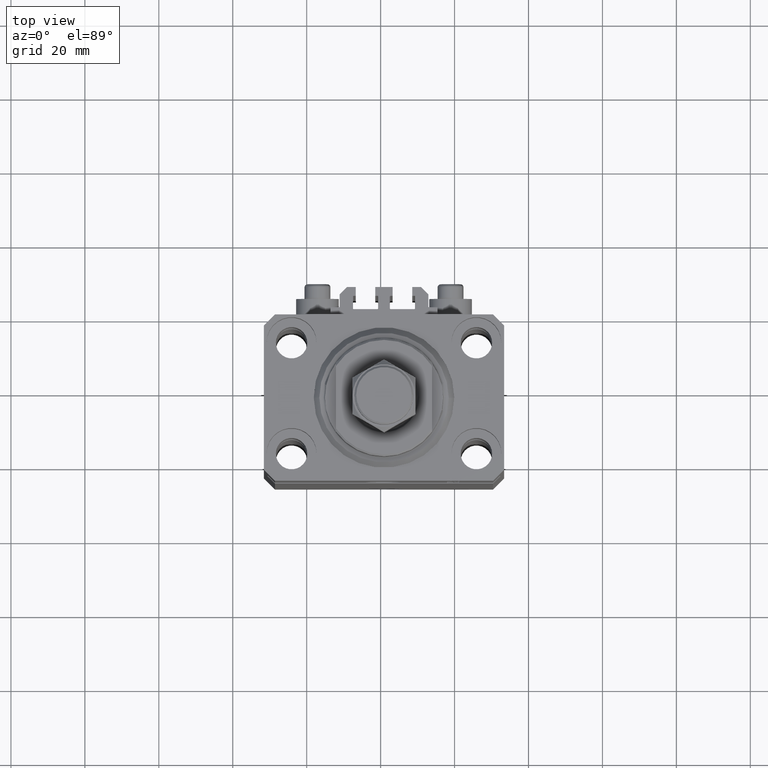
[diagram: clean part render]
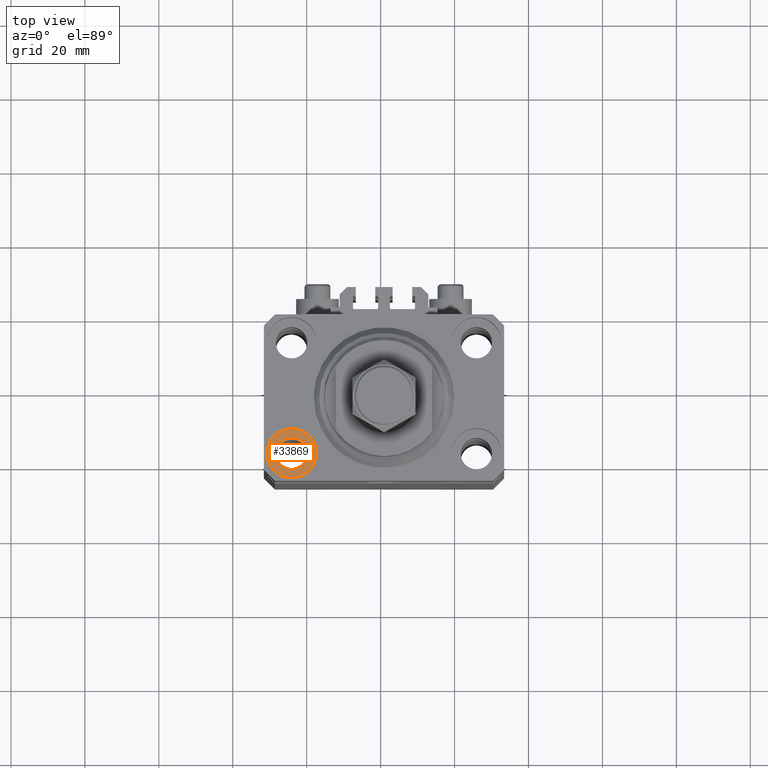
[diagram: same view with one face highlighted and labeled with its STEP entity id]
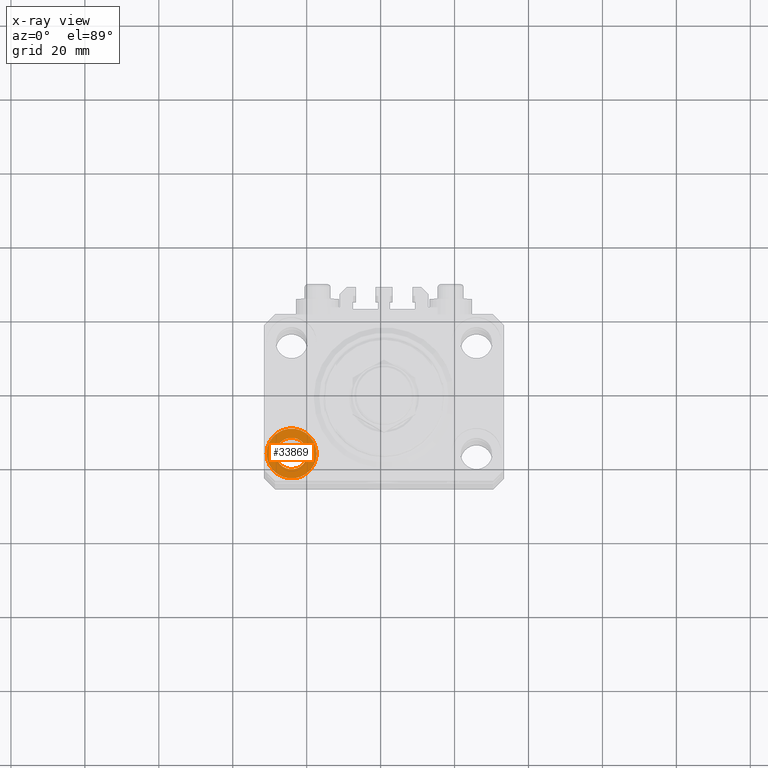
[diagram: x-ray of the same camera — body ghosted, the highlighted face saturated]
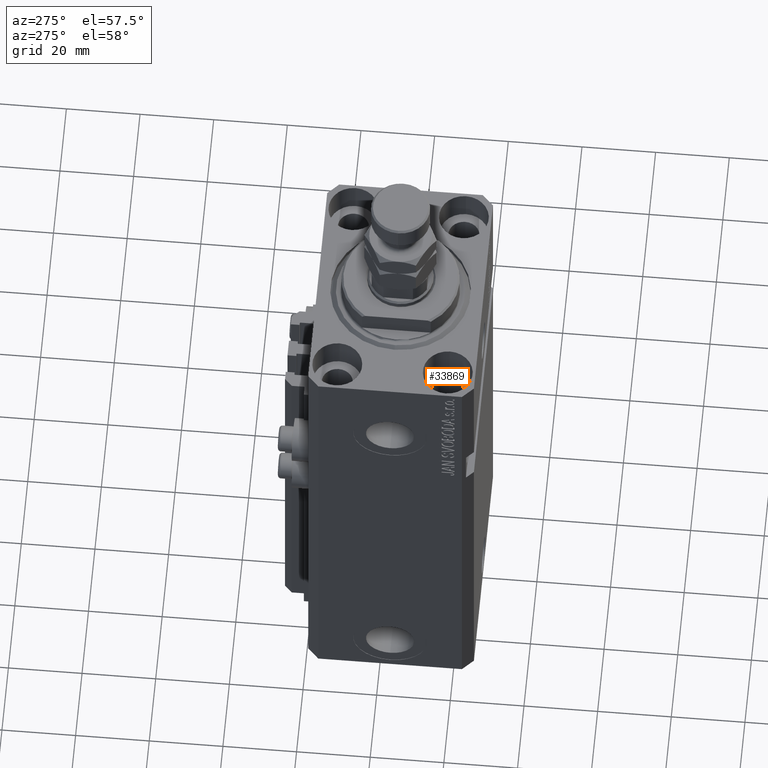
[diagram: same view with one face highlighted and labeled with its STEP entity id]
A machine part, top view. The second image highlights one B-rep face of the part: STEP entity #33869.
The next image is the same camera in x-ray: the body ghosted, the highlighted face saturated — about 0% of this face is hidden behind the body in this view.
A second angle (auxiliary view) of the same face is appended — the face is thin or edge-on in the first view.
In plain terms, the highlighted planar face has unit normal (0, 0, 1).
Its self-contained STEP definition (entity closure, byte-faithful):
#1179 = CIRCLE ( 'NONE', #15406, 4.250000000041540105 ) ;
#2542 = DIRECTION ( 'NONE',  ( 1.000000000000000000, 0.000000000000000000, 0.000000000000000000 ) ) ;
#2555 = CARTESIAN_POINT ( 'NONE',  ( -29.25000000004154543, -15.00000000000000000, -9.000000000000000000 ) ) ;
#4132 = CARTESIAN_POINT ( 'NONE',  ( -25.00000000000000355, -15.00000000000000000, -9.000000000000000000 ) ) ;
#4264 = FACE_BOUND ( 'NONE', #19846, .T. ) ;
#5096 = ORIENTED_EDGE ( 'NONE', *, *, #16272, .F. ) ;
#7608 = DIRECTION ( 'NONE',  ( 1.000000000000000000, 0.000000000000000000, 0.000000000000000000 ) ) ;
#8584 = DIRECTION ( 'NONE',  ( 0.000000000000000000, 0.000000000000000000, 1.000000000000000000 ) ) ;
#9566 = EDGE_LOOP ( 'NONE', ( #18481, #25857 ) ) ;
#10112 = CARTESIAN_POINT ( 'NONE',  ( -25.00000000000000355, -15.00000000000000000, -9.000000000000000000 ) ) ;
#11854 = VERTEX_POINT ( 'NONE', #19792 ) ;
#12189 = FACE_OUTER_BOUND ( 'NONE', #9566, .T. ) ;
#12248 = CARTESIAN_POINT ( 'NONE',  ( -20.74999999995846522, -15.00000000000000000, -9.000000000000000000 ) ) ;
#15148 = EDGE_CURVE ( 'NONE', #11854, #37922, #27976, .T. ) ;
#15406 = AXIS2_PLACEMENT_3D ( 'NONE', #4132, #8584, #7608 ) ;
#15657 = DIRECTION ( 'NONE',  ( 0.000000000000000000, 0.000000000000000000, 1.000000000000000000 ) ) ;
#15793 = EDGE_CURVE ( 'NONE', #33534, #31093, #1179, .T. ) ;
#16272 = EDGE_CURVE ( 'NONE', #31093, #33534, #44502, .T. ) ;
#18481 = ORIENTED_EDGE ( 'NONE', *, *, #15148, .T. ) ;
#19792 = CARTESIAN_POINT ( 'NONE',  ( -18.24999999995846167, -15.00000000000000000, -9.000000000000000000 ) ) ;
#19846 = EDGE_LOOP ( 'NONE', ( #34475, #5096 ) ) ;
#19993 = AXIS2_PLACEMENT_3D ( 'NONE', #10112, #21243, #36763 ) ;
#21243 = DIRECTION ( 'NONE',  ( 0.000000000000000000, 0.000000000000000000, 1.000000000000000000 ) ) ;
#23257 = AXIS2_PLACEMENT_3D ( 'NONE', #48202, #32908, #2542 ) ;
#25857 = ORIENTED_EDGE ( 'NONE', *, *, #43125, .T. ) ;
#26745 = CARTESIAN_POINT ( 'NONE',  ( -25.00000000000000355, -15.00000000000000000, -9.000000000000000000 ) ) ;
#27582 = DIRECTION ( 'NONE',  ( 0.000000000000000000, 0.000000000000000000, 1.000000000000000000 ) ) ;
#27976 = CIRCLE ( 'NONE', #34274, 6.750000000041541881 ) ;
#29960 = PLANE ( 'NONE',  #37889 ) ;
#31093 = VERTEX_POINT ( 'NONE', #2555 ) ;
#32908 = DIRECTION ( 'NONE',  ( 0.000000000000000000, 0.000000000000000000, 1.000000000000000000 ) ) ;
#33534 = VERTEX_POINT ( 'NONE', #12248 ) ;
#33869 = ADVANCED_FACE ( 'NONE', ( #4264, #12189 ), #29960, .T. ) ;
#34274 = AXIS2_PLACEMENT_3D ( 'NONE', #46313, #27582, #47034 ) ;
#34475 = ORIENTED_EDGE ( 'NONE', *, *, #15793, .F. ) ;
#36763 = DIRECTION ( 'NONE',  ( 1.000000000000000000, 0.000000000000000000, 0.000000000000000000 ) ) ;
#37889 = AXIS2_PLACEMENT_3D ( 'NONE', #26745, #15657, #41778 ) ;
#37922 = VERTEX_POINT ( 'NONE', #44305 ) ;
#41778 = DIRECTION ( 'NONE',  ( 1.000000000000000000, 0.000000000000000000, -0.000000000000000000 ) ) ;
#43125 = EDGE_CURVE ( 'NONE', #37922, #11854, #48347, .T. ) ;
#44305 = CARTESIAN_POINT ( 'NONE',  ( -31.75000000004154899, -15.00000000000000000, -9.000000000000000000 ) ) ;
#44502 = CIRCLE ( 'NONE', #23257, 4.250000000041540105 ) ;
#46313 = CARTESIAN_POINT ( 'NONE',  ( -25.00000000000000355, -15.00000000000000000, -9.000000000000000000 ) ) ;
#47034 = DIRECTION ( 'NONE',  ( 1.000000000000000000, 0.000000000000000000, 0.000000000000000000 ) ) ;
#48202 = CARTESIAN_POINT ( 'NONE',  ( -25.00000000000000355, -15.00000000000000000, -9.000000000000000000 ) ) ;
#48347 = CIRCLE ( 'NONE', #19993, 6.750000000041541881 ) ;